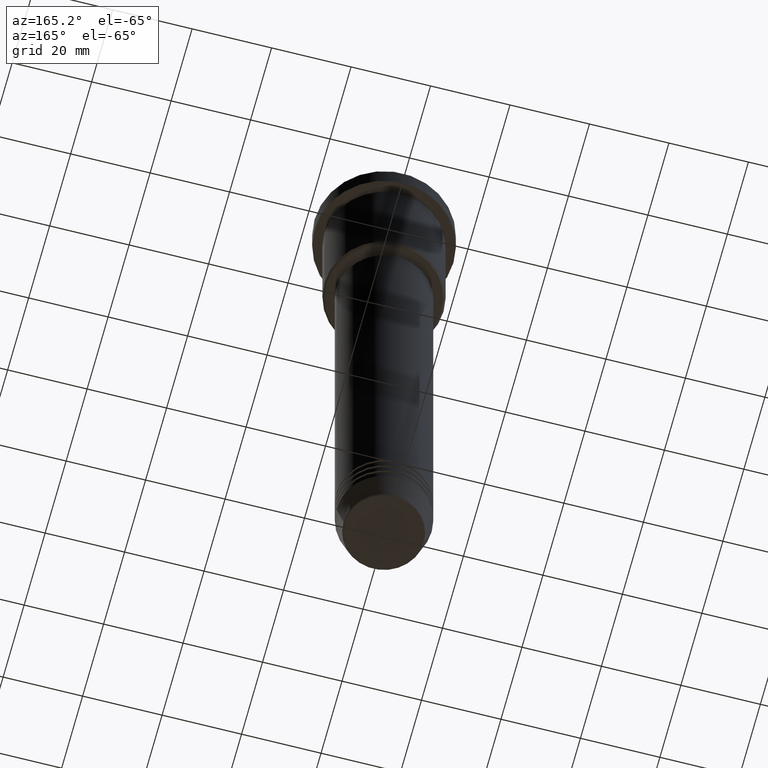
[diagram: clean part render]
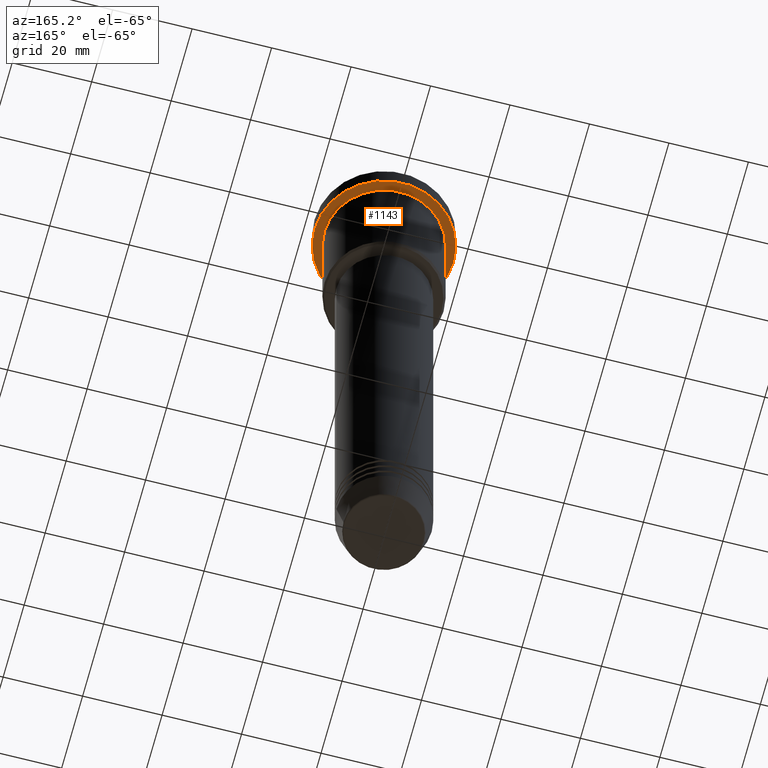
[diagram: same view with one face highlighted and labeled with its STEP entity id]
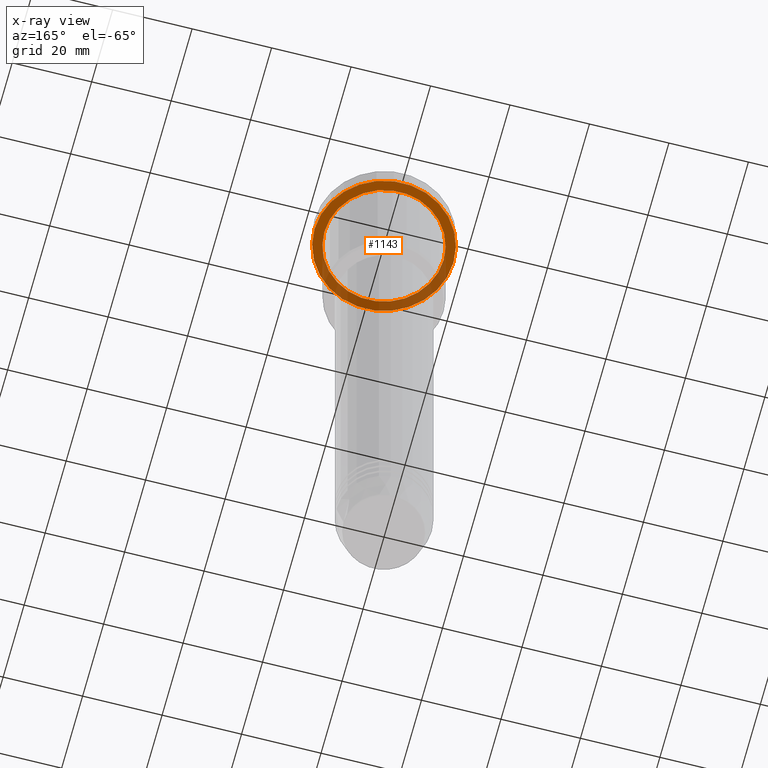
[diagram: x-ray of the same camera — body ghosted, the highlighted face saturated]
A machine part, auxiliary view. The second image highlights one B-rep face of the part: STEP entity #1143.
The next image is the same camera in x-ray: the body ghosted, the highlighted face saturated — about 37% of this face is hidden behind the body in this view.
In plain terms, the highlighted planar face has unit normal (0, 0, -1).
Its self-contained STEP definition (entity closure, byte-faithful):
#3 = AXIS2_PLACEMENT_3D ( 'NONE', #582, #946, #122 ) ;
#19 = ORIENTED_EDGE ( 'NONE', *, *, #441, .F. ) ;
#122 = DIRECTION ( 'NONE',  ( 1.000000000000000000, 0.000000000000000000, 0.000000000000000000 ) ) ;
#170 = CARTESIAN_POINT ( 'NONE',  ( -17.50000000000000000, 2.143131898507868248E-15, -5.999999999999995559 ) ) ;
#203 = CARTESIAN_POINT ( 'NONE',  ( 0.000000000000000000, 17.50000000000000000, -5.999999999999995559 ) ) ;
#205 = ORIENTED_EDGE ( 'NONE', *, *, #736, .T. ) ;
#212 = CARTESIAN_POINT ( 'NONE',  ( 17.50000000000000000, 0.000000000000000000, -5.999999999999995559 ) ) ;
#220 = DIRECTION ( 'NONE',  ( -1.000000000000000000, 0.000000000000000000, 0.000000000000000000 ) ) ;
#230 = EDGE_CURVE ( 'NONE', #271, #1169, #646, .T. ) ;
#243 = CIRCLE ( 'NONE', #513, 15.00000000000000000 ) ;
#271 = VERTEX_POINT ( 'NONE', #1002 ) ;
#309 = CARTESIAN_POINT ( 'NONE',  ( 0.000000000000000000, 0.000000000000000000, -5.999999999999995559 ) ) ;
#321 = CIRCLE ( 'NONE', #3, 17.50000000000000000 ) ;
#362 = DIRECTION ( 'NONE',  ( -0.000000000000000000, -0.000000000000000000, 1.000000000000000000 ) ) ;
#394 = CIRCLE ( 'NONE', #472, 17.50000000000000000 ) ;
#441 = EDGE_CURVE ( 'NONE', #1146, #930, #394, .T. ) ;
#472 = AXIS2_PLACEMENT_3D ( 'NONE', #928, #362, #830 ) ;
#491 = ORIENTED_EDGE ( 'NONE', *, *, #1159, .F. ) ;
#503 = DIRECTION ( 'NONE',  ( -1.000000000000000000, 0.000000000000000000, 0.000000000000000000 ) ) ;
#513 = AXIS2_PLACEMENT_3D ( 'NONE', #309, #1179, #503 ) ;
#569 = DIRECTION ( 'NONE',  ( 0.000000000000000000, 0.000000000000000000, -1.000000000000000000 ) ) ;
#582 = CARTESIAN_POINT ( 'NONE',  ( 0.000000000000000000, 0.000000000000000000, -5.999999999999995559 ) ) ;
#646 = CIRCLE ( 'NONE', #797, 15.00000000000000000 ) ;
#716 = ORIENTED_EDGE ( 'NONE', *, *, #230, .T. ) ;
#736 = EDGE_CURVE ( 'NONE', #1169, #271, #243, .T. ) ;
#750 = EDGE_LOOP ( 'NONE', ( #19, #491 ) ) ;
#751 = FACE_OUTER_BOUND ( 'NONE', #750, .T. ) ;
#756 = FACE_BOUND ( 'NONE', #1089, .T. ) ;
#765 = CARTESIAN_POINT ( 'NONE',  ( 15.00000000000000000, 1.836970198721029589E-15, -5.999999999999994671 ) ) ;
#768 = CARTESIAN_POINT ( 'NONE',  ( 0.000000000000000000, 0.000000000000000000, -5.999999999999995559 ) ) ;
#797 = AXIS2_PLACEMENT_3D ( 'NONE', #768, #1138, #220 ) ;
#830 = DIRECTION ( 'NONE',  ( 1.000000000000000000, 0.000000000000000000, 0.000000000000000000 ) ) ;
#928 = CARTESIAN_POINT ( 'NONE',  ( 0.000000000000000000, 0.000000000000000000, -5.999999999999995559 ) ) ;
#930 = VERTEX_POINT ( 'NONE', #170 ) ;
#934 = AXIS2_PLACEMENT_3D ( 'NONE', #203, #569, #1041 ) ;
#946 = DIRECTION ( 'NONE',  ( -0.000000000000000000, -0.000000000000000000, 1.000000000000000000 ) ) ;
#1002 = CARTESIAN_POINT ( 'NONE',  ( -15.00000000000000000, 0.000000000000000000, -5.999999999999994671 ) ) ;
#1041 = DIRECTION ( 'NONE',  ( -1.000000000000000000, 0.000000000000000000, -0.000000000000000000 ) ) ;
#1089 = EDGE_LOOP ( 'NONE', ( #716, #205 ) ) ;
#1123 = PLANE ( 'NONE',  #934 ) ;
#1138 = DIRECTION ( 'NONE',  ( -0.000000000000000000, -0.000000000000000000, 1.000000000000000000 ) ) ;
#1143 = ADVANCED_FACE ( 'NONE', ( #756, #751 ), #1123, .T. ) ;
#1146 = VERTEX_POINT ( 'NONE', #212 ) ;
#1159 = EDGE_CURVE ( 'NONE', #930, #1146, #321, .T. ) ;
#1169 = VERTEX_POINT ( 'NONE', #765 ) ;
#1179 = DIRECTION ( 'NONE',  ( -0.000000000000000000, -0.000000000000000000, 1.000000000000000000 ) ) ;